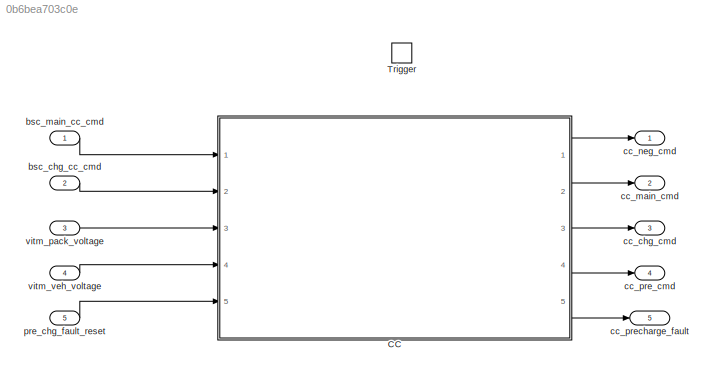
MODEL slx_0b6bea703c0e
KIND model
CONFIG AbsTol = auto
CONFIG FixedStep = CCOk_stepSize
CONFIG MaxStep = auto
CONFIG MinStep = auto
CONFIG RelTol = 1e-3
CONFIG SampleTimeConstraint = Unconstrained
CONFIG Solver = FixedStepAuto
CONFIG SolverMode = Auto
CONFIG SolverName = FixedStepAuto
CONFIG StartTime = 0.0
CONFIG StopTime = 10.0
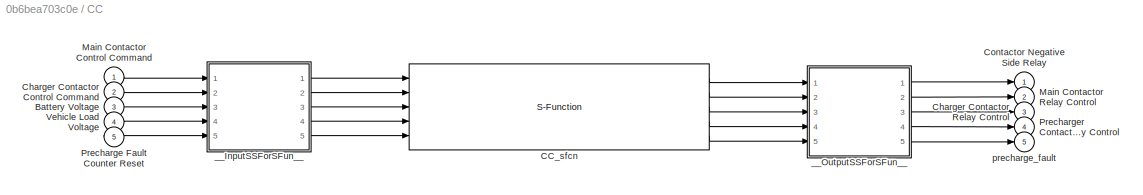
BLOCK [SubSystem] CC
  Ports = [5, 5]
  RequestExecContextInheritance = off
  Variant = off
BLOCK [Inport] CC/Battery Voltage
  IconDisplay = Port number
  Port = 3
BLOCK [S-Function] CC/CC_sfcn
  CopyFcn = if ~strcmp(get_param(gcb,'Linkstatus'),'none') && ...\n~strcmp(get_param(gcb,'Linkstatus'),'implicit')      \n  set_param(gcb,'LinkStatus','none');                \nend
  EnableBusSupport = off
  FunctionName = CC_sf
  Parameters = sfcnParam1
  Ports = [5, 5]
  SFunctionDeploymentMode = off
BLOCK [Inport] CC/Charger Contactor Control Command
  IconDisplay = Port number
  OutDataTypeStr = boolean
  Port = 2
BLOCK [Outport] CC/Charger Contactor Relay Control
  IconDisplay = Port number
  Port = 3
BLOCK [Outport] CC/Contactor Negative Side Relay 
  IconDisplay = Port number
BLOCK [Inport] CC/Main Contactor Control Command
  IconDisplay = Port number
  OutDataTypeStr = boolean
BLOCK [Outport] CC/Main Contactor Relay Control 
  IconDisplay = Port number
  Port = 2
BLOCK [Inport] CC/Precharge Fault Counter Reset
  IconDisplay = Port number
  Port = 5
BLOCK [Outport] CC/Precharger Contactor Relay Control 
  IconDisplay = Port number
  Port = 4
BLOCK [Inport] CC/Vehicle Load Voltage
  IconDisplay = Port number
  Port = 4
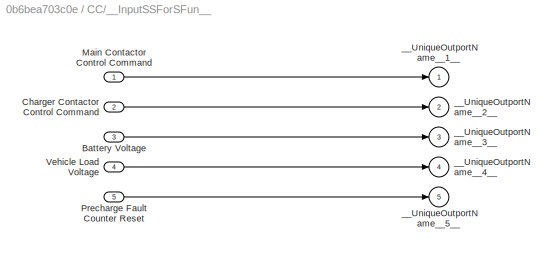
BLOCK [SubSystem] CC/__InputSSForSFun__
  PermitHierarchicalResolution = ExplicitOnly
  Ports = [5, 5]
  RequestExecContextInheritance = off
  Variant = off
BLOCK [Inport] CC/__InputSSForSFun__/Battery Voltage
  IconDisplay = Port number
  Port = 3
BLOCK [Inport] CC/__InputSSForSFun__/Charger Contactor Control Command
  IconDisplay = Port number
  OutDataTypeStr = boolean
  Port = 2
BLOCK [Inport] CC/__InputSSForSFun__/Main Contactor Control Command
  IconDisplay = Port number
  OutDataTypeStr = boolean
BLOCK [Inport] CC/__InputSSForSFun__/Precharge Fault Counter Reset
  IconDisplay = Port number
  Port = 5
BLOCK [Inport] CC/__InputSSForSFun__/Vehicle Load Voltage
  IconDisplay = Port number
  Port = 4
BLOCK [Outport] CC/__InputSSForSFun__/__UniqueOutportName__1__
  IconDisplay = Port number
BLOCK [Outport] CC/__InputSSForSFun__/__UniqueOutportName__2__
  IconDisplay = Port number
  Port = 2
BLOCK [Outport] CC/__InputSSForSFun__/__UniqueOutportName__3__
  IconDisplay = Port number
  Port = 3
BLOCK [Outport] CC/__InputSSForSFun__/__UniqueOutportName__4__
  IconDisplay = Port number
  Port = 4
BLOCK [Outport] CC/__InputSSForSFun__/__UniqueOutportName__5__
  IconDisplay = Port number
  Port = 5
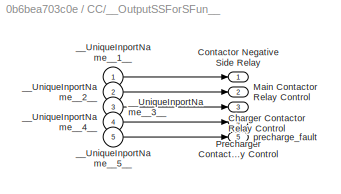
BLOCK [SubSystem] CC/__OutputSSForSFun__
  PermitHierarchicalResolution = ExplicitOnly
  Ports = [5, 5]
  RequestExecContextInheritance = off
  Variant = off
BLOCK [Outport] CC/__OutputSSForSFun__/Charger Contactor Relay Control
  IconDisplay = Port number
  Port = 3
BLOCK [Outport] CC/__OutputSSForSFun__/Contactor Negative Side Relay 
  IconDisplay = Port number
BLOCK [Outport] CC/__OutputSSForSFun__/Main Contactor Relay Control 
  IconDisplay = Port number
  Port = 2
BLOCK [Outport] CC/__OutputSSForSFun__/Precharger Contactor Relay Control 
  IconDisplay = Port number
  Port = 4
BLOCK [Inport] CC/__OutputSSForSFun__/__UniqueInportName__1__
  IconDisplay = Port number
BLOCK [Inport] CC/__OutputSSForSFun__/__UniqueInportName__2__
  IconDisplay = Port number
  Port = 2
BLOCK [Inport] CC/__OutputSSForSFun__/__UniqueInportName__3__
  IconDisplay = Port number
  Port = 3
BLOCK [Inport] CC/__OutputSSForSFun__/__UniqueInportName__4__
  IconDisplay = Port number
  Port = 4
BLOCK [Inport] CC/__OutputSSForSFun__/__UniqueInportName__5__
  IconDisplay = Port number
  Port = 5
BLOCK [Outport] CC/__OutputSSForSFun__/precharge_fault
  IconDisplay = Port number
  Port = 5
BLOCK [Outport] CC/precharge_fault
  IconDisplay = Port number
  Port = 5
BLOCK [TriggerPort] Trigger
  PortDimensions = 1
  Ports = []
  StatesWhenEnabling = held
  TriggerType = function-call
BLOCK [Inport] bsc_chg_cc_cmd
  IconDisplay = Port number
  OutDataTypeStr = boolean
  Port = 2
BLOCK [Inport] bsc_main_cc_cmd
  IconDisplay = Port number
  OutDataTypeStr = boolean
BLOCK [Outport] cc_chg_cmd
  IconDisplay = Port number
  Port = 3
BLOCK [Outport] cc_main_cmd
  IconDisplay = Port number
  Port = 2
BLOCK [Outport] cc_neg_cmd
  IconDisplay = Port number
BLOCK [Outport] cc_pre_cmd
  IconDisplay = Port number
  Port = 4
BLOCK [Outport] cc_precharge_fault
  IconDisplay = Port number
  Port = 5
BLOCK [Inport] pre_chg_fault_reset
  IconDisplay = Port number
  Port = 5
BLOCK [Inport] vitm_pack_voltage
  IconDisplay = Port number
  Port = 3
BLOCK [Inport] vitm_veh_voltage
  IconDisplay = Port number
  Port = 4
LINE CC/Battery Voltage:1 -> CC/__InputSSForSFun__:3
LINE CC/CC_sfcn:1 -> CC/__OutputSSForSFun__:1
LINE CC/CC_sfcn:2 -> CC/__OutputSSForSFun__:2
LINE CC/CC_sfcn:3 -> CC/__OutputSSForSFun__:3
LINE CC/CC_sfcn:4 -> CC/__OutputSSForSFun__:4
LINE CC/CC_sfcn:5 -> CC/__OutputSSForSFun__:5
LINE CC/Charger Contactor Control Command:1 -> CC/__InputSSForSFun__:2
LINE CC/Main Contactor Control Command:1 -> CC/__InputSSForSFun__:1
LINE CC/Precharge Fault Counter Reset:1 -> CC/__InputSSForSFun__:5
LINE CC/Vehicle Load Voltage:1 -> CC/__InputSSForSFun__:4
LINE CC/__InputSSForSFun__/Battery Voltage:1 -> CC/__InputSSForSFun__/__UniqueOutportName__3__:1
LINE CC/__InputSSForSFun__/Charger Contactor Control Command:1 -> CC/__InputSSForSFun__/__UniqueOutportName__2__:1
LINE CC/__InputSSForSFun__/Main Contactor Control Command:1 -> CC/__InputSSForSFun__/__UniqueOutportName__1__:1
LINE CC/__InputSSForSFun__/Precharge Fault Counter Reset:1 -> CC/__InputSSForSFun__/__UniqueOutportName__5__:1
LINE CC/__InputSSForSFun__/Vehicle Load Voltage:1 -> CC/__InputSSForSFun__/__UniqueOutportName__4__:1
LINE CC/__InputSSForSFun__:1 -> CC/CC_sfcn:1
LINE CC/__InputSSForSFun__:2 -> CC/CC_sfcn:2
LINE CC/__InputSSForSFun__:3 -> CC/CC_sfcn:3
LINE CC/__InputSSForSFun__:4 -> CC/CC_sfcn:4
LINE CC/__InputSSForSFun__:5 -> CC/CC_sfcn:5
LINE CC/__OutputSSForSFun__/__UniqueInportName__1__:1 -> CC/__OutputSSForSFun__/Contactor Negative Side Relay :1
LINE CC/__OutputSSForSFun__/__UniqueInportName__2__:1 -> CC/__OutputSSForSFun__/Main Contactor Relay Control :1
LINE CC/__OutputSSForSFun__/__UniqueInportName__3__:1 -> CC/__OutputSSForSFun__/Charger Contactor Relay Control:1
LINE CC/__OutputSSForSFun__/__UniqueInportName__4__:1 -> CC/__OutputSSForSFun__/Precharger Contactor Relay Control :1
LINE CC/__OutputSSForSFun__/__UniqueInportName__5__:1 -> CC/__OutputSSForSFun__/precharge_fault:1
LINE CC/__OutputSSForSFun__:1 -> CC/Contactor Negative Side Relay :1
LINE CC/__OutputSSForSFun__:2 -> CC/Main Contactor Relay Control :1
LINE CC/__OutputSSForSFun__:3 -> CC/Charger Contactor Relay Control:1
LINE CC/__OutputSSForSFun__:4 -> CC/Precharger Contactor Relay Control :1
LINE CC/__OutputSSForSFun__:5 -> CC/precharge_fault:1
LINE CC:1 -> cc_neg_cmd:1
LINE CC:2 -> cc_main_cmd:1
LINE CC:3 -> cc_chg_cmd:1
LINE CC:4 -> cc_pre_cmd:1
LINE CC:5 -> cc_precharge_fault:1
LINE bsc_chg_cc_cmd:1 -> CC:2
LINE bsc_main_cc_cmd:1 -> CC:1
LINE pre_chg_fault_reset:1 -> CC:5
LINE vitm_pack_voltage:1 -> CC:3
LINE vitm_veh_voltage:1 -> CC:4
